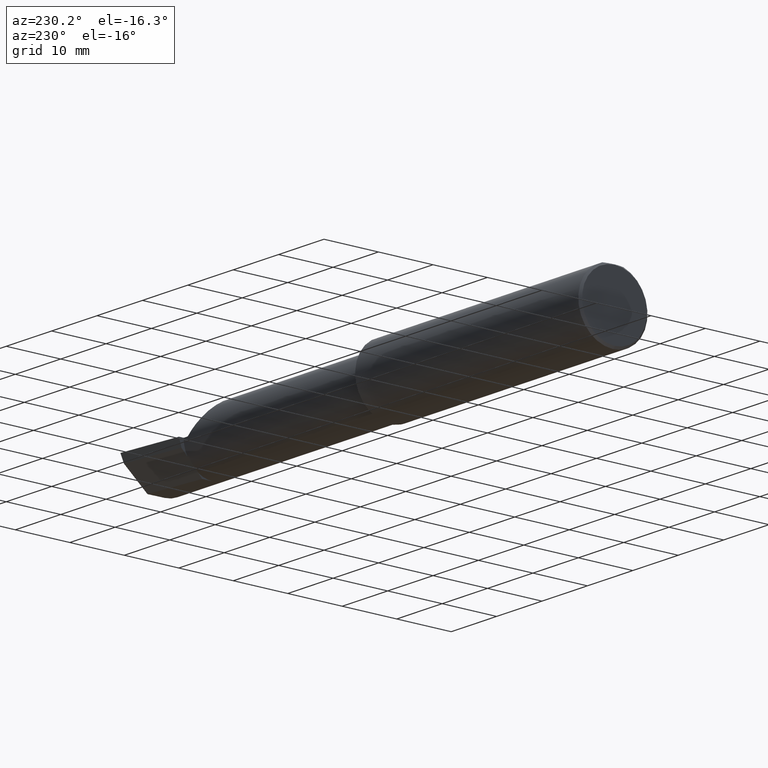
[diagram: clean part render]
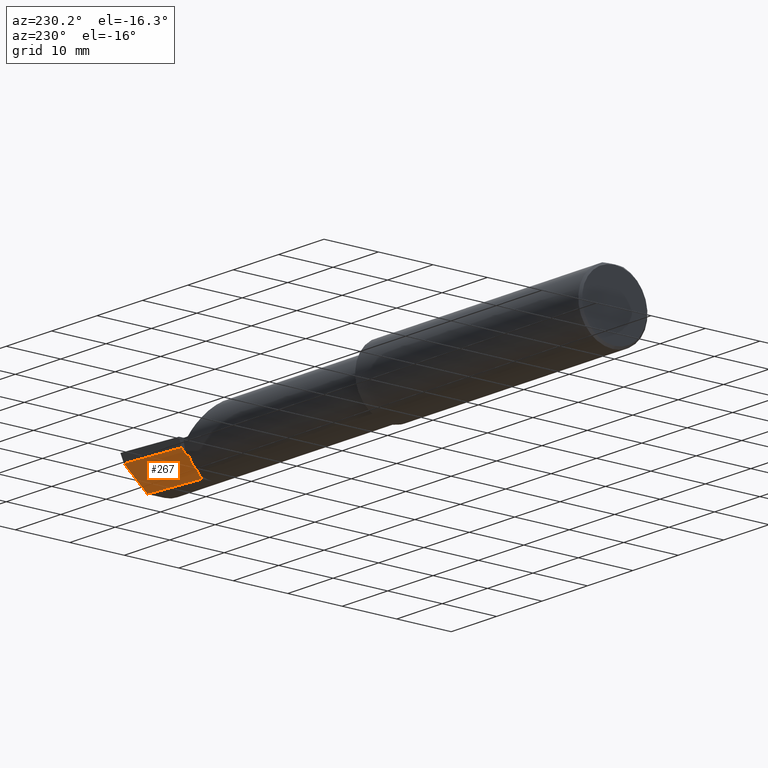
[diagram: same view with one face highlighted and labeled with its STEP entity id]
A machine part, auxiliary view. The second image highlights one B-rep face of the part: STEP entity #267.
In plain terms, the highlighted planar face has unit normal (0.0689, -0.716, 0.6947).
Its self-contained STEP definition (entity closure, byte-faithful):
#15 = ORIENTED_EDGE ( 'NONE', *, *, #290, .T. ) ;
#47 = DIRECTION ( 'NONE',  ( 0.06894566448119619773, -0.7160281025913034503, 0.6946583704589934793 ) ) ;
#54 = VERTEX_POINT ( 'NONE', #755 ) ;
#62 = CARTESIAN_POINT ( 'NONE',  ( 3.544999999999999929, 0.02733053485622426171, -0.2131499999999999506 ) ) ;
#71 = EDGE_LOOP ( 'NONE', ( #753, #329, #153, #734, #550, #510, #15, #592 ) ) ;
#93 = VECTOR ( 'NONE', #164, 39.37007874015748854 ) ;
#94 = CARTESIAN_POINT ( 'NONE',  ( 3.540349815208491790, 0.05592018782259825654, -0.1832193089843147937 ) ) ;
#96 = LINE ( 'NONE', #465, #714 ) ;
#105 = VERTEX_POINT ( 'NONE', #62 ) ;
#111 = VECTOR ( 'NONE', #761, 39.37007874015748854 ) ;
#117 = CARTESIAN_POINT ( 'NONE',  ( 3.992127980275560262, 0.2189633278254523030, -0.06000000000000001166 ) ) ;
#120 = PLANE ( 'NONE',  #205 ) ;
#127 = LINE ( 'NONE', #128, #261 ) ;
#128 = CARTESIAN_POINT ( 'NONE',  ( 3.544999999999999929, 0.2148312740513258212, -0.01988118725737611850 ) ) ;
#134 = EDGE_CURVE ( 'NONE', #105, #636, #127, .T. ) ;
#153 = ORIENTED_EDGE ( 'NONE', *, *, #486, .F. ) ;
#157 =( BOUNDED_CURVE ( )  B_SPLINE_CURVE ( 3, ( #284, #587, #759, #403 ),
 .UNSPECIFIED., .F., .F. ) 
 B_SPLINE_CURVE_WITH_KNOTS ( ( 4, 4 ),
 ( 2.868174658477177452, 2.883234730632700415 ),
 .UNSPECIFIED. ) 
 CURVE ( )  GEOMETRIC_REPRESENTATION_ITEM ( )  RATIONAL_B_SPLINE_CURVE ( ( 1.000000000000000000, 0.9999810996081960335, 0.9999810996081960335, 1.000000000000000000 ) ) 
 REPRESENTATION_ITEM ( '' )  );
#164 = DIRECTION ( 'NONE',  ( 0.9953961983671800740, 0.09584575252021027003, -1.636475167022361930E-17 ) ) ;
#166 = FACE_OUTER_BOUND ( 'NONE', #71, .T. ) ;
#173 = CARTESIAN_POINT ( 'NONE',  ( 3.544999999999999929, 0.2148312740513258212, -0.01988118725737611850 ) ) ;
#204 = VERTEX_POINT ( 'NONE', #544 ) ;
#205 = AXIS2_PLACEMENT_3D ( 'NONE', #643, #47, #230 ) ;
#230 = DIRECTION ( 'NONE',  ( 0.0000000000000000000, -0.6963153109074925462, -0.7177360153954948085 ) ) ;
#258 = EDGE_CURVE ( 'NONE', #312, #204, #521, .T. ) ;
#261 = VECTOR ( 'NONE', #304, 39.37007874015748143 ) ;
#265 = CARTESIAN_POINT ( 'NONE',  ( 3.544999999999999929, 0.05698775240724700958, -0.1825804393148460492 ) ) ;
#267 = ADVANCED_FACE ( 'NONE', ( #166 ), #120, .F. ) ;
#283 = VECTOR ( 'NONE', #652, 39.37007874015748854 ) ;
#284 = CARTESIAN_POINT ( 'NONE',  ( 3.532795049205047722, 0.1343794326159070129, -0.1015966078791044475 ) ) ;
#285 = CARTESIAN_POINT ( 'NONE',  ( 3.532795049205047722, 0.1343794326159070129, -0.1015966078791044475 ) ) ;
#290 = EDGE_CURVE ( 'NONE', #426, #312, #157, .T. ) ;
#294 = CARTESIAN_POINT ( 'NONE',  ( 3.983714411583733295, 0.1632262006094473417, -0.1166167083458063969 ) ) ;
#304 = DIRECTION ( 'NONE',  ( 0.0000000000000000000, 0.6963153109074925462, 0.7177360153954948085 ) ) ;
#312 = VERTEX_POINT ( 'NONE', #474 ) ;
#327 = EDGE_CURVE ( 'NONE', #349, #54, #616, .T. ) ;
#329 = ORIENTED_EDGE ( 'NONE', *, *, #327, .T. ) ;
#332 = CARTESIAN_POINT ( 'NONE',  ( 3.541916792879878706, 0.05627666367902794953, -0.1830073912696822958 ) ) ;
#335 = CARTESIAN_POINT ( 'NONE',  ( 3.544999999999999929, 0.05698775240724700958, -0.1825804393148460492 ) ) ;
#349 = VERTEX_POINT ( 'NONE', #117 ) ;
#350 = DIRECTION ( 'NONE',  ( 0.0000000000000000000, 0.6963153109074925462, 0.7177360153954948085 ) ) ;
#403 = CARTESIAN_POINT ( 'NONE',  ( 3.544999999999999929, 0.1328281892403430642, -0.1044069278527782890 ) ) ;
#404 = CARTESIAN_POINT ( 'NONE',  ( 3.528944985009565993, 0.1743638780700111635, -0.06000000000000001166 ) ) ;
#426 = VERTEX_POINT ( 'NONE', #285 ) ;
#465 = CARTESIAN_POINT ( 'NONE',  ( 3.528944985009565993, 0.1743638780700111635, -0.06000000000000001166 ) ) ;
#474 = CARTESIAN_POINT ( 'NONE',  ( 3.544999999999999929, 0.1328281892403430642, -0.1044069278527782890 ) ) ;
#480 = LINE ( 'NONE', #404, #111 ) ;
#486 = EDGE_CURVE ( 'NONE', #105, #54, #571, .T. ) ;
#510 = ORIENTED_EDGE ( 'NONE', *, *, #680, .F. ) ;
#518 = VERTEX_POINT ( 'NONE', #94 ) ;
#521 = LINE ( 'NONE', #173, #635 ) ;
#538 = EDGE_CURVE ( 'NONE', #636, #518, #767, .T. ) ;
#544 = CARTESIAN_POINT ( 'NONE',  ( 3.544999999999999929, 0.1759098001822370638, -0.06000000000000001166 ) ) ;
#550 = ORIENTED_EDGE ( 'NONE', *, *, #538, .T. ) ;
#571 = LINE ( 'NONE', #581, #93 ) ;
#581 = CARTESIAN_POINT ( 'NONE',  ( 3.988156289907357266, 0.07000163221415003911, -0.2131499999999999506 ) ) ;
#587 = CARTESIAN_POINT ( 'NONE',  ( 3.536975816846328335, 0.1338694103809223435, -0.1025372660271280101 ) ) ;
#592 = ORIENTED_EDGE ( 'NONE', *, *, #258, .T. ) ;
#616 = LINE ( 'NONE', #294, #283 ) ;
#635 = VECTOR ( 'NONE', #350, 39.37007874015748143 ) ;
#636 = VERTEX_POINT ( 'NONE', #265 ) ;
#643 = CARTESIAN_POINT ( 'NONE',  ( 3.528944985009565993, 0.1743638780700111635, -0.06000000000000001166 ) ) ;
#652 = DIRECTION ( 'NONE',  ( -0.1053106618241713005, -0.6976485211320173629, -0.7086580314005225256 ) ) ;
#680 = EDGE_CURVE ( 'NONE', #426, #518, #480, .T. ) ;
#684 = CARTESIAN_POINT ( 'NONE',  ( 3.540349815208491790, 0.05592018782259825654, -0.1832193089843147937 ) ) ;
#714 = VECTOR ( 'NONE', #747, 39.37007874015748854 ) ;
#727 = EDGE_CURVE ( 'NONE', #204, #349, #96, .T. ) ;
#734 = ORIENTED_EDGE ( 'NONE', *, *, #134, .T. ) ;
#746 = CARTESIAN_POINT ( 'NONE',  ( 3.543466858877806658, 0.05663251955088040995, -0.1827944341085904478 ) ) ;
#747 = DIRECTION ( 'NONE',  ( 0.9953961983671800740, 0.09584575252021028391, -0.0000000000000000000 ) ) ;
#753 = ORIENTED_EDGE ( 'NONE', *, *, #727, .T. ) ;
#755 = CARTESIAN_POINT ( 'NONE',  ( 3.969369008890592632, 0.06819262280682632238, -0.2131499999999999506 ) ) ;
#759 = CARTESIAN_POINT ( 'NONE',  ( 3.541044210672213755, 0.1333523194825136093, -0.1034740570574033958 ) ) ;
#761 = DIRECTION ( 'NONE',  ( 0.06658005426110603919, -0.6914603011188221737, -0.7193398003386548556 ) ) ;
#767 =( BOUNDED_CURVE ( )  B_SPLINE_CURVE ( 3, ( #335, #746, #332, #684 ),
 .UNSPECIFIED., .F., .T. ) 
 B_SPLINE_CURVE_WITH_KNOTS ( ( 4, 4 ),
 ( 3.399950576546886705, 3.405787439796291505 ),
 .UNSPECIFIED. ) 
 CURVE ( )  GEOMETRIC_REPRESENTATION_ITEM ( )  RATIONAL_B_SPLINE_CURVE ( ( 1.000000000000000000, 0.9999971609209656886, 0.9999971609209656886, 1.000000000000000000 ) ) 
 REPRESENTATION_ITEM ( '' )  );